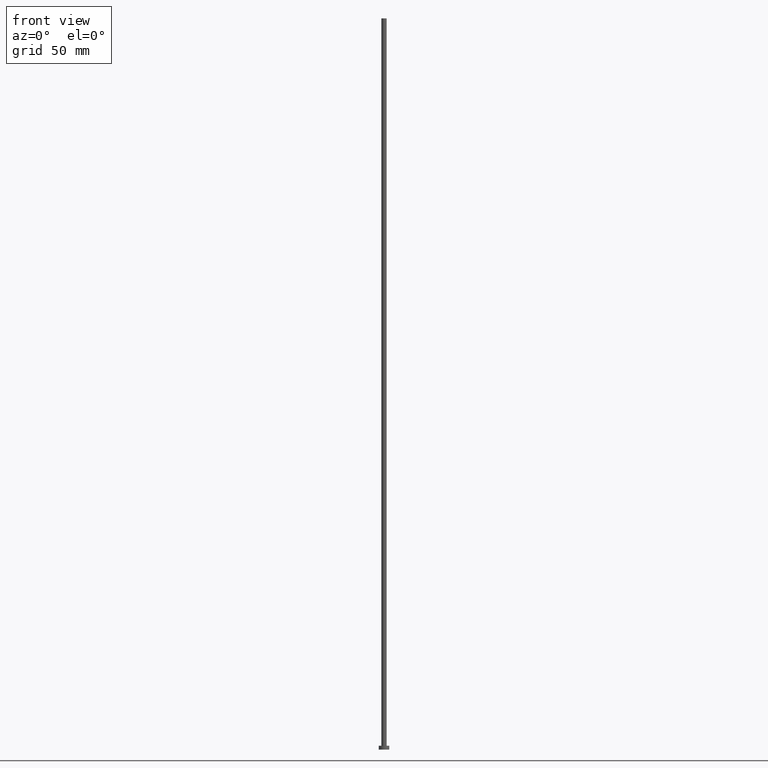
[diagram: clean part render]
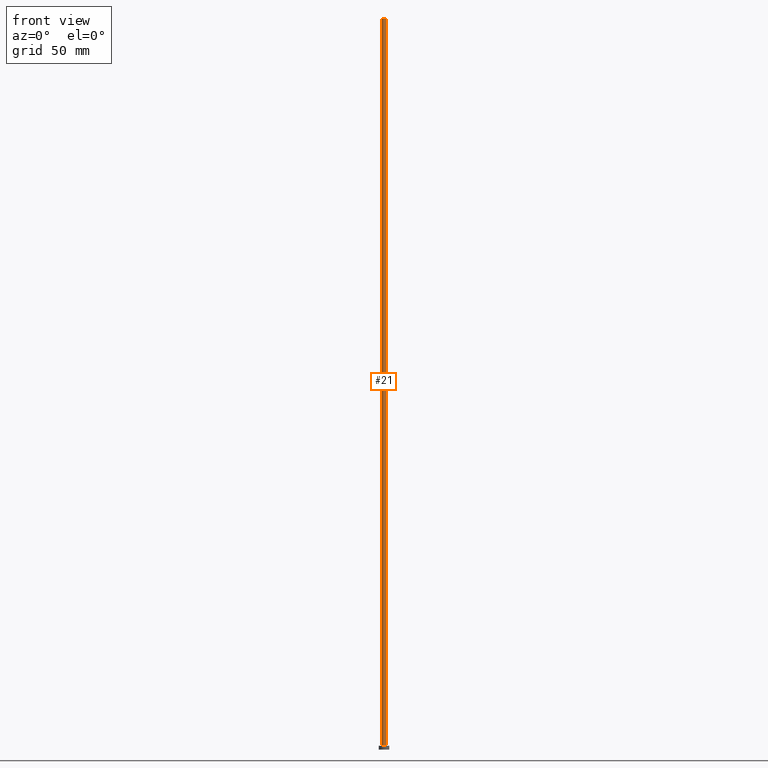
[diagram: same view with one face highlighted and labeled with its STEP entity id]
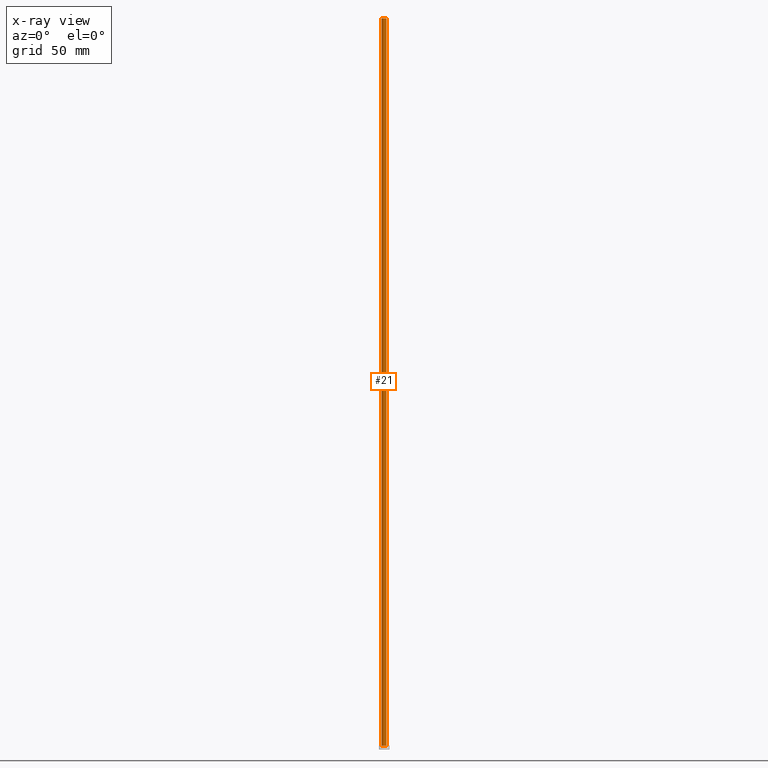
[diagram: x-ray of the same camera — body ghosted, the highlighted face saturated]
A machine part, front view. The second image highlights one B-rep face of the part: STEP entity #21.
The next image is the same camera in x-ray: the body ghosted, the highlighted face saturated — about 0% of this face is hidden behind the body in this view.
In plain terms, the highlighted cylindrical surface (edge-blend (fillet) strip) has radius 2 mm, axis along (-0, -0, -1).
Its self-contained STEP definition (entity closure, byte-faithful):
#4 = CARTESIAN_POINT ( 'NONE',  ( 0.000000000000000000, 0.000000000000000000, 560.0000000000000000 ) ) ;
#8 = ORIENTED_EDGE ( 'NONE', *, *, #219, .F. ) ;
#10 = AXIS2_PLACEMENT_3D ( 'NONE', #125, #104, #74 ) ;
#12 = CIRCLE ( 'NONE', #161, 2.000000000000000000 ) ;
#21 = ADVANCED_FACE ( 'NONE', ( #139 ), #31, .T. ) ;
#24 = AXIS2_PLACEMENT_3D ( 'NONE', #80, #235, #122 ) ;
#30 = VERTEX_POINT ( 'NONE', #56 ) ;
#31 = CYLINDRICAL_SURFACE ( 'NONE', #10, 2.000000000000000000 ) ;
#40 = LINE ( 'NONE', #184, #49 ) ;
#49 = VECTOR ( 'NONE', #66, 1000.000000000000000 ) ;
#51 = ORIENTED_EDGE ( 'NONE', *, *, #121, .T. ) ;
#55 = VECTOR ( 'NONE', #214, 1000.000000000000000 ) ;
#56 = CARTESIAN_POINT ( 'NONE',  ( -2.000000000000000000, 0.000000000000000000, 3.000000000000000000 ) ) ;
#66 = DIRECTION ( 'NONE',  ( -0.000000000000000000, -0.000000000000000000, -1.000000000000000000 ) ) ;
#74 = DIRECTION ( 'NONE',  ( -1.000000000000000000, 0.000000000000000000, 0.000000000000000000 ) ) ;
#80 = CARTESIAN_POINT ( 'NONE',  ( 0.000000000000000000, 0.000000000000000000, 3.000000000000000000 ) ) ;
#94 = ORIENTED_EDGE ( 'NONE', *, *, #135, .F. ) ;
#104 = DIRECTION ( 'NONE',  ( -0.000000000000000000, -0.000000000000000000, -1.000000000000000000 ) ) ;
#113 = VERTEX_POINT ( 'NONE', #142 ) ;
#118 = VERTEX_POINT ( 'NONE', #233 ) ;
#121 = EDGE_CURVE ( 'NONE', #30, #118, #178, .T. ) ;
#122 = DIRECTION ( 'NONE',  ( 1.000000000000000000, 0.000000000000000000, 0.000000000000000000 ) ) ;
#125 = CARTESIAN_POINT ( 'NONE',  ( 0.000000000000000000, 0.000000000000000000, 560.0000000000000000 ) ) ;
#130 = DIRECTION ( 'NONE',  ( 1.000000000000000000, 0.000000000000000000, 0.000000000000000000 ) ) ;
#135 = EDGE_CURVE ( 'NONE', #113, #118, #177, .T. ) ;
#139 = FACE_OUTER_BOUND ( 'NONE', #172, .T. ) ;
#142 = CARTESIAN_POINT ( 'NONE',  ( 2.000000000000000000, 2.449293598294706414E-16, 560.0000000000000000 ) ) ;
#145 = DIRECTION ( 'NONE',  ( 0.000000000000000000, 0.000000000000000000, 1.000000000000000000 ) ) ;
#161 = AXIS2_PLACEMENT_3D ( 'NONE', #4, #145, #130 ) ;
#172 = EDGE_LOOP ( 'NONE', ( #94, #8, #222, #51 ) ) ;
#177 = LINE ( 'NONE', #251, #55 ) ;
#178 = CIRCLE ( 'NONE', #24, 2.000000000000000000 ) ;
#184 = CARTESIAN_POINT ( 'NONE',  ( -2.000000000000000000, 0.000000000000000000, 560.0000000000000000 ) ) ;
#199 = CARTESIAN_POINT ( 'NONE',  ( -2.000000000000000000, 0.000000000000000000, 560.0000000000000000 ) ) ;
#214 = DIRECTION ( 'NONE',  ( -0.000000000000000000, -0.000000000000000000, -1.000000000000000000 ) ) ;
#219 = EDGE_CURVE ( 'NONE', #244, #113, #12, .T. ) ;
#222 = ORIENTED_EDGE ( 'NONE', *, *, #241, .T. ) ;
#233 = CARTESIAN_POINT ( 'NONE',  ( 2.000000000000000000, 2.449293598294706414E-16, 3.000000000000000000 ) ) ;
#235 = DIRECTION ( 'NONE',  ( 0.000000000000000000, 0.000000000000000000, 1.000000000000000000 ) ) ;
#241 = EDGE_CURVE ( 'NONE', #244, #30, #40, .T. ) ;
#244 = VERTEX_POINT ( 'NONE', #199 ) ;
#251 = CARTESIAN_POINT ( 'NONE',  ( 2.000000000000000000, 2.449293598294706414E-16, 560.0000000000000000 ) ) ;